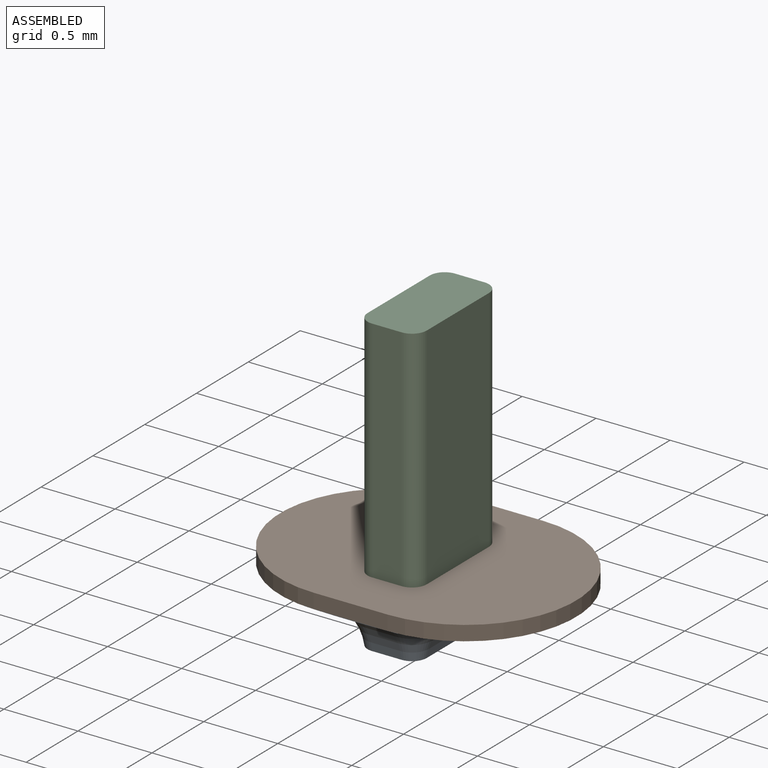
[diagram: assembled view]
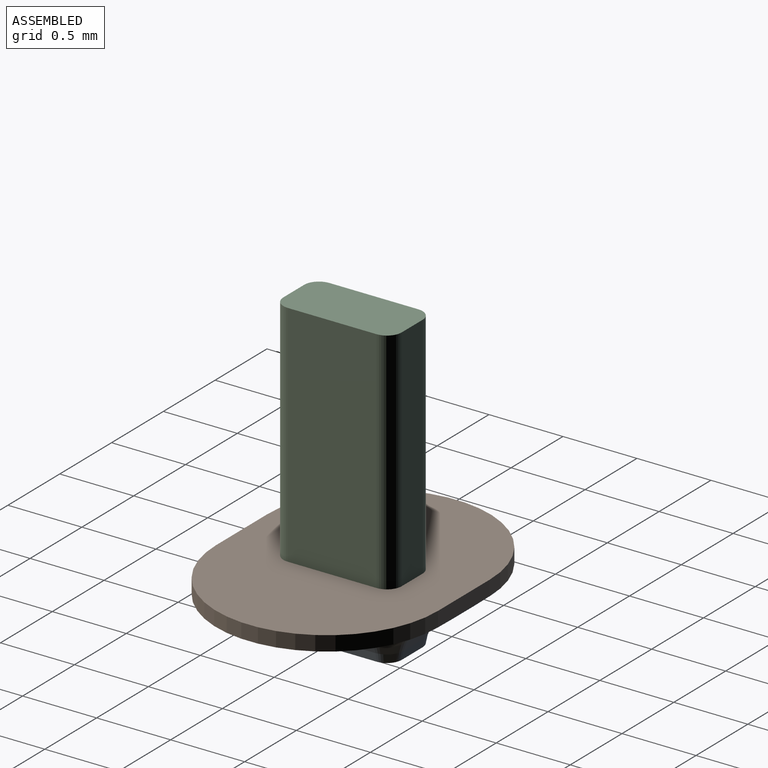
[diagram: assembled view, second angle]
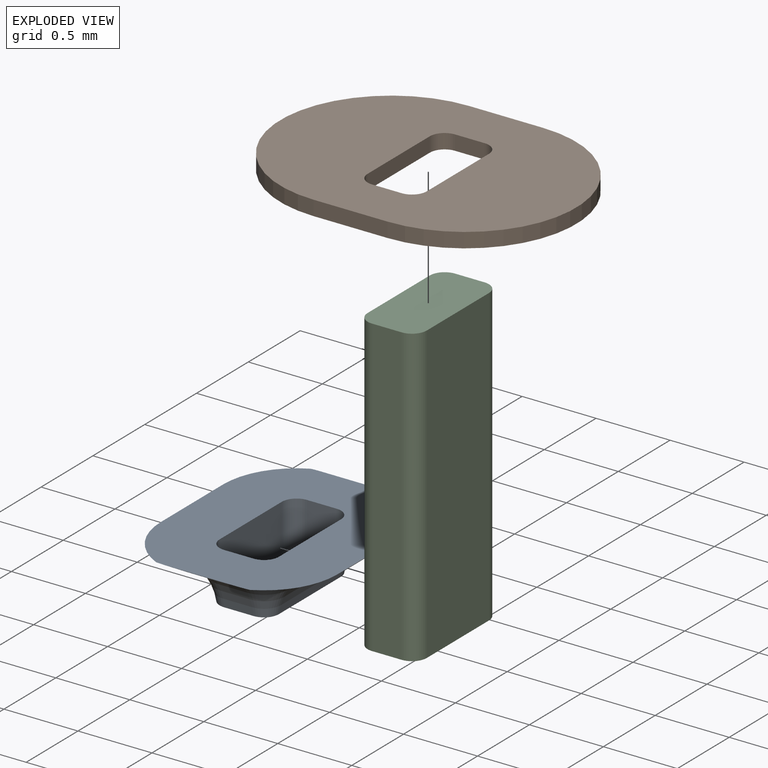
[diagram: exploded view]
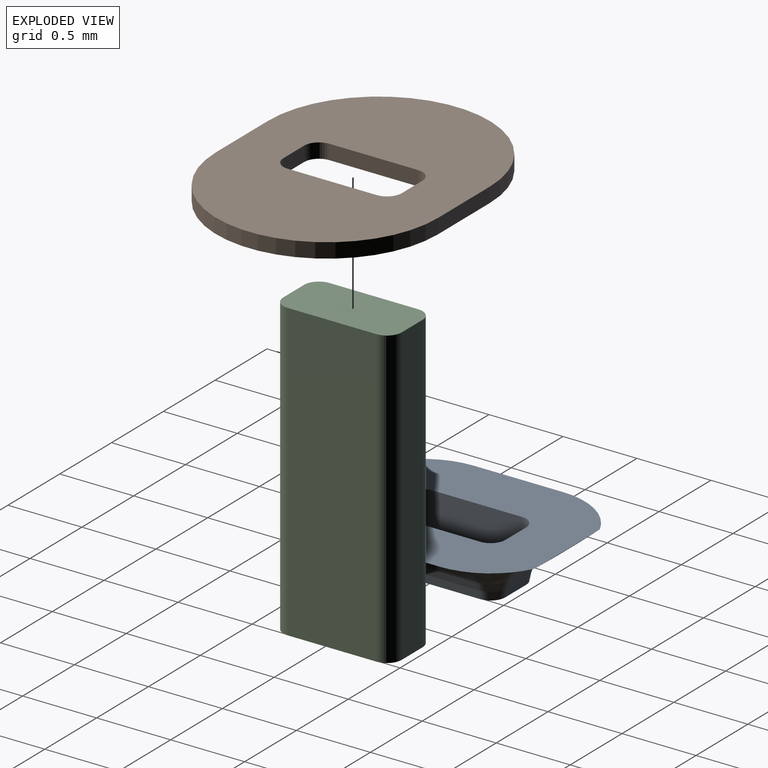
[diagram: exploded view, second angle]
ASSEMBLY  parts=3 mates=2
PART A: 23 faces, bbox 1.9x2.3x0.4 mm
  f0: cylinder r=0.75mm len=0.07mm, axis (0,0,-1), area 0mm2, adj f5,f10,f22
  f1: cylinder r=0.75mm len=0.07mm, axis (0,0,-1), area 0mm2, adj f9,f10,f22
  f2: cylinder r=0.4mm len=0.6mm, axis (0,-1,0), area 0.3mm2, adj f5,f6,f14,f22
  f3: cylinder r=0.4mm len=0.6mm, axis (0,1,0), area 0.3mm2, adj f8,f9,f18,f22
  f4: cylinder r=0.4mm len=0.35mm, axis (1,0,0), area 0.1mm2, adj f5,f9,f10,f16
  f5: torus R=0.5mm, axis (0,0,1), area 0.2mm2, adj f0,f2,f4,f10,f15,f22
  f6: torus R=0.5mm, axis (0,0,1), area 0.2mm2, adj f2,f7,f11,f12,f21,f22
  f7: cylinder r=0.4mm len=0.35mm, axis (-1,0,0), area 0.1mm2, adj f6,f8,f12,f20
  f8: torus R=0.5mm, axis (0,0,1), area 0.2mm2, adj f3,f7,f12,f13,f19,f22
  f9: torus R=0.5mm, axis (0,0,1), area 0.2mm2, adj f1,f3,f4,f10,f17,f22
  f10: plane 0.51x0.02mm, normal (0,-1,0), area 0mm2, adj f0,f1,f4,f5,f9,f22
  f11: cylinder r=0.75mm len=0.07mm, axis (0,0,-1), area 0mm2, adj f6,f12,f22
  f12: plane 0.51x0.02mm, normal (0,1,0), area 0mm2, adj f6,f7,f8,f11,f13,f22
  f13: cylinder r=0.75mm len=0.07mm, axis (0,0,-1), area 0mm2, adj f8,f12,f22
  f14: plane 0.6x0.35mm, normal (1,0,0), area 0.2mm2, adj f2,f15,f21,f22
  f15: cylinder r=0.1mm len=0.35mm, axis (0,0,1), area 0.1mm2, adj f5,f14,f16,f22
  f16: plane 0.35x0.2mm, normal (0,1,0), area 0.1mm2, adj f4,f15,f17,f22
  f17: cylinder r=0.1mm len=0.35mm, axis (0,0,1), area 0.1mm2, adj f9,f16,f18,f22
  f18: plane 0.6x0.35mm, normal (-1,0,0), area 0.2mm2, adj f3,f17,f19,f22
  f19: cylinder r=0.1mm len=0.35mm, axis (0,0,1), area 0.1mm2, adj f8,f18,f20,f22
  f20: plane 0.35x0.2mm, normal (0,-1,0), area 0.1mm2, adj f7,f19,f21,f22
  f21: cylinder r=0.1mm len=0.35mm, axis (0,0,1), area 0.1mm2, adj f6,f14,f20,f22
  f22: plane 1.5x1.19mm, normal (0,0,1), area 1.3mm2, adj f0,f1,f2,f3,f5,f6,f8,f9
PART B: 14 faces, bbox 2x1.5x0.1 mm
  f0: plane 2x1.5mm, normal (0,0,-1), area 2.2mm2, adj f1,f2,f3,f4,f6,f7,f8,f9
  f1: cylinder r=0.75mm len=1.5mm, axis (0,0,-1), area 0.2mm2, adj f0,f2,f4,f5
  f2: plane 0.5x0.1mm, normal (0,1,0), area 0.1mm2, adj f0,f1,f3,f5
  f3: cylinder r=0.75mm len=1.5mm, axis (0,0,-1), area 0.2mm2, adj f0,f2,f4,f5
  f4: plane 0.5x0.1mm, normal (0,-1,0), area 0.1mm2, adj f0,f1,f3,f5
  f5: plane 2x1.5mm, normal (0,0,1), area 2.2mm2, adj f1,f2,f3,f4,f6,f7,f8,f9
  f6: cylinder r=0.1mm len=0.1mm, axis (0,0,1), area 0mm2, adj f0,f5,f7,f13
  f7: plane 0.2x0.1mm, normal (0,-1,0), area 0mm2, adj f0,f5,f6,f8
  f8: cylinder r=0.1mm len=0.1mm, axis (0,0,1), area 0mm2, adj f0,f5,f7,f9
  f9: plane 0.6x0.1mm, normal (-1,0,0), area 0.1mm2, adj f0,f5,f8,f10
  f10: cylinder r=0.1mm len=0.1mm, axis (0,0,1), area 0mm2, adj f0,f5,f9,f11
  f11: plane 0.2x0.1mm, normal (0,1,0), area 0mm2, adj f0,f5,f10,f12
  f12: cylinder r=0.1mm len=0.1mm, axis (0,0,1), area 0mm2, adj f0,f5,f11,f13
  f13: plane 0.6x0.1mm, normal (1,0,0), area 0.1mm2, adj f0,f5,f6,f12
PART C: 10 faces, bbox 0.4x0.8x2 mm
  f0: plane 2x0.6mm, normal (-1,0,0), area 1.2mm2, adj f1,f7,f8,f9
  f1: cylinder r=0.1mm len=2mm, axis (0,0,1), area 0.3mm2, adj f0,f2,f8,f9
  f2: plane 2x0.2mm, normal (0,-1,0), area 0.4mm2, adj f1,f3,f8,f9
  f3: cylinder r=0.1mm len=2mm, axis (0,0,1), area 0.3mm2, adj f2,f4,f8,f9
  f4: plane 2x0.6mm, normal (1,0,0), area 1.2mm2, adj f3,f5,f8,f9
  f5: cylinder r=0.1mm len=2mm, axis (0,0,1), area 0.3mm2, adj f4,f6,f8,f9
  f6: plane 2x0.2mm, normal (0,1,0), area 0.4mm2, adj f5,f7,f8,f9
  f7: cylinder r=0.1mm len=2mm, axis (0,0,1), area 0.3mm2, adj f0,f6,f8,f9
  f8: plane 0.8x0.4mm, normal (0,0,1), area 0.3mm2, adj f0,f1,f2,f3,f4,f5,f6,f7
  f9: plane 0.8x0.4mm, normal (0,0,-1), area 0.3mm2, adj f0,f1,f2,f3,f4,f5,f6,f7
PLACE A t=(36.19,-24.05,17.66)mm
PLACE B t=(36.19,-24.05,17.66)mm
PLACE C t=(36.19,-24.05,17.66)mm
MATE fastened A.f8 <-> C.f5  axis (0,0,1) through (-14.51,17.91,15.66)mm
MATE fastened B.f0 <-> A.f22  axis (0,0,-1) through (-14.61,18.36,16.01)mm
